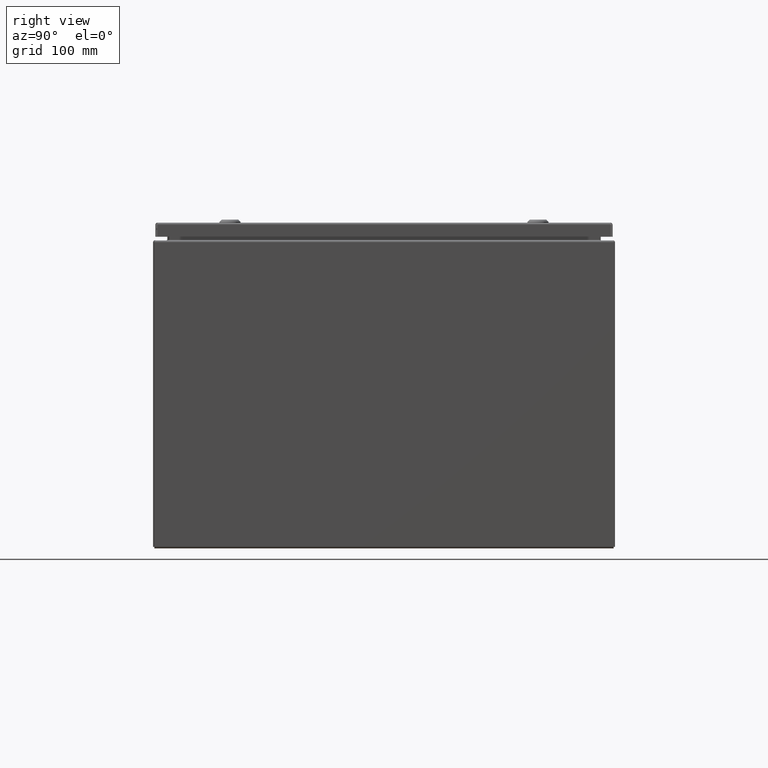
[diagram: clean part render]
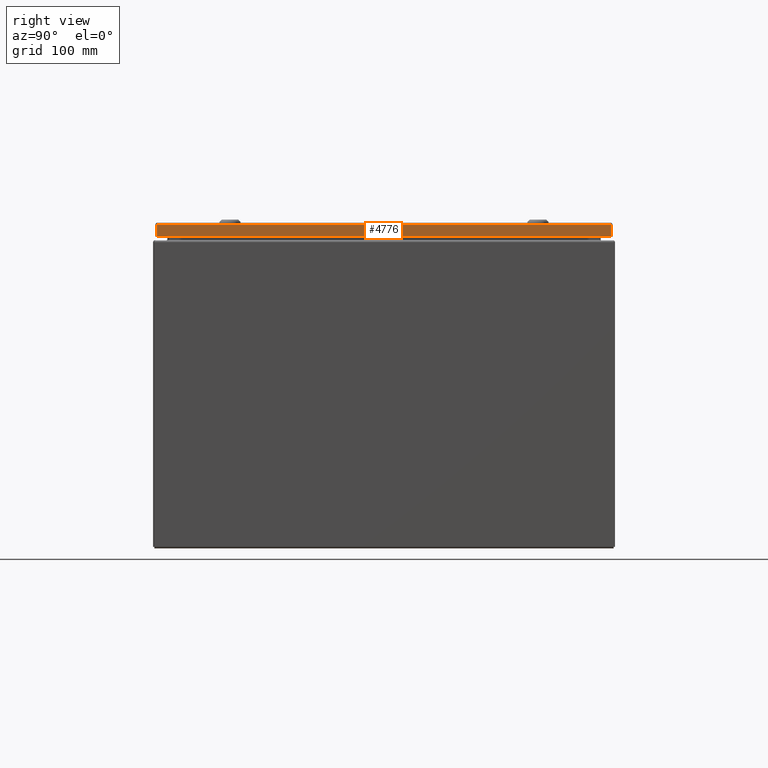
[diagram: same view with one face highlighted and labeled with its STEP entity id]
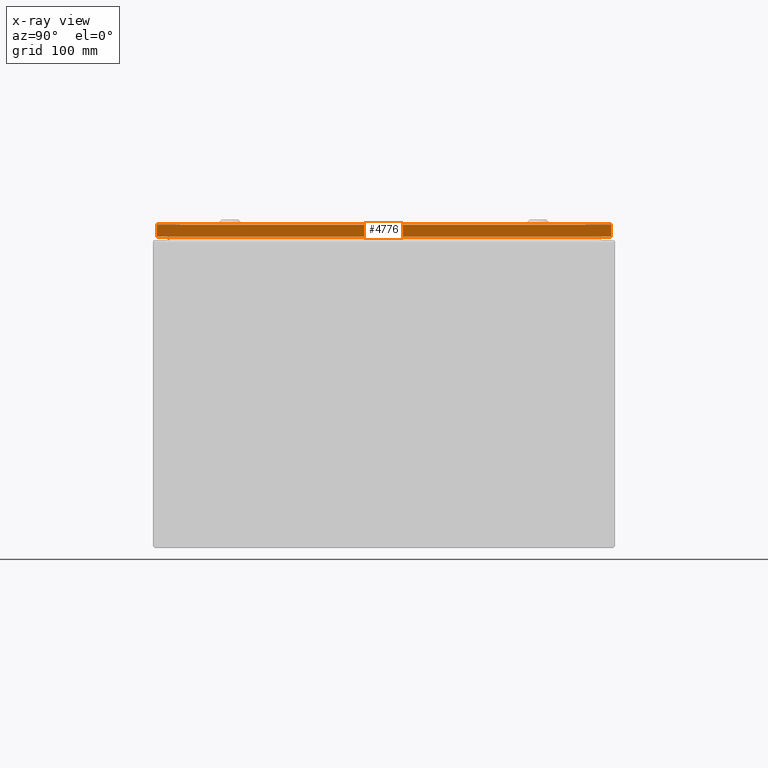
[diagram: x-ray of the same camera — body ghosted, the highlighted face saturated]
A machine part, right view. The second image highlights one B-rep face of the part: STEP entity #4776.
The next image is the same camera in x-ray: the body ghosted, the highlighted face saturated — about 0% of this face is hidden behind the body in this view.
In plain terms, the highlighted planar face has unit normal (-1, -0, 0).
Its self-contained STEP definition (entity closure, byte-faithful):
#4528=CARTESIAN_POINT('',(-7.648454E-015,23.664951456543967,0.105250000000006));
#4529=VERTEX_POINT('',#4528);
#4530=CARTESIAN_POINT('',(-4.729004E-016,0.085048543456038,0.105250000000001));
#4531=VERTEX_POINT('',#4530);
#4532=CARTESIAN_POINT('',(-7.652548E-015,23.664951456543967,0.105250000000000));
#4533=DIRECTION('',(0.0,-1.0,0.0));
#4534=VECTOR('',#4533,23.579902913087928);
#4535=LINE('',#4532,#4534);
#4536=EDGE_CURVE('',#4529,#4531,#4535,.T.);
#4614=CARTESIAN_POINT('',(-5.330088E-016,0.085048543456039,0.730000000000001));
#4615=VERTEX_POINT('',#4614);
#4616=CARTESIAN_POINT('',(-5.330088E-016,0.085048543456039,0.730000000000001));
#4617=DIRECTION('',(0.0,0.0,-1.0));
#4618=VECTOR('',#4617,0.624750000000000);
#4619=LINE('',#4616,#4618);
#4620=EDGE_CURVE('',#4615,#4531,#4619,.T.);
#4729=CARTESIAN_POINT('',(-7.719490E-015,23.664951456543964,0.730000000000006));
#4730=VERTEX_POINT('',#4729);
#4731=CARTESIAN_POINT('',(-7.659381E-015,23.664951456543964,0.105250000000006));
#4732=DIRECTION('',(0.0,0.0,1.0));
#4733=VECTOR('',#4732,0.624750000000000);
#4734=LINE('',#4731,#4733);
#4735=EDGE_CURVE('',#4529,#4730,#4734,.T.);
#4753=CARTESIAN_POINT('',(-7.697635E-015,23.664951456543964,0.730000000000006));
#4754=DIRECTION('',(0.0,-1.0,0.0));
#4755=VECTOR('',#4754,23.579902913087924);
#4756=LINE('',#4753,#4755);
#4757=EDGE_CURVE('',#4730,#4615,#4756,.T.);
#4765=CARTESIAN_POINT('',(-4.088106E-015,11.875000000000002,0.374748932821485));
#4766=DIRECTION('',(1.0,0.0,0.0));
#4767=DIRECTION('',(0.0,0.0,-1.0));
#4768=AXIS2_PLACEMENT_3D('',#4765,#4766,#4767);
#4769=PLANE('',#4768);
#4770=ORIENTED_EDGE('',*,*,#4536,.T.);
#4771=ORIENTED_EDGE('',*,*,#4620,.F.);
#4772=ORIENTED_EDGE('',*,*,#4757,.F.);
#4773=ORIENTED_EDGE('',*,*,#4735,.F.);
#4774=EDGE_LOOP('',(#4770,#4771,#4772,#4773));
#4775=FACE_OUTER_BOUND('',#4774,.T.);
#4776=ADVANCED_FACE('',(#4775),#4769,.F.);